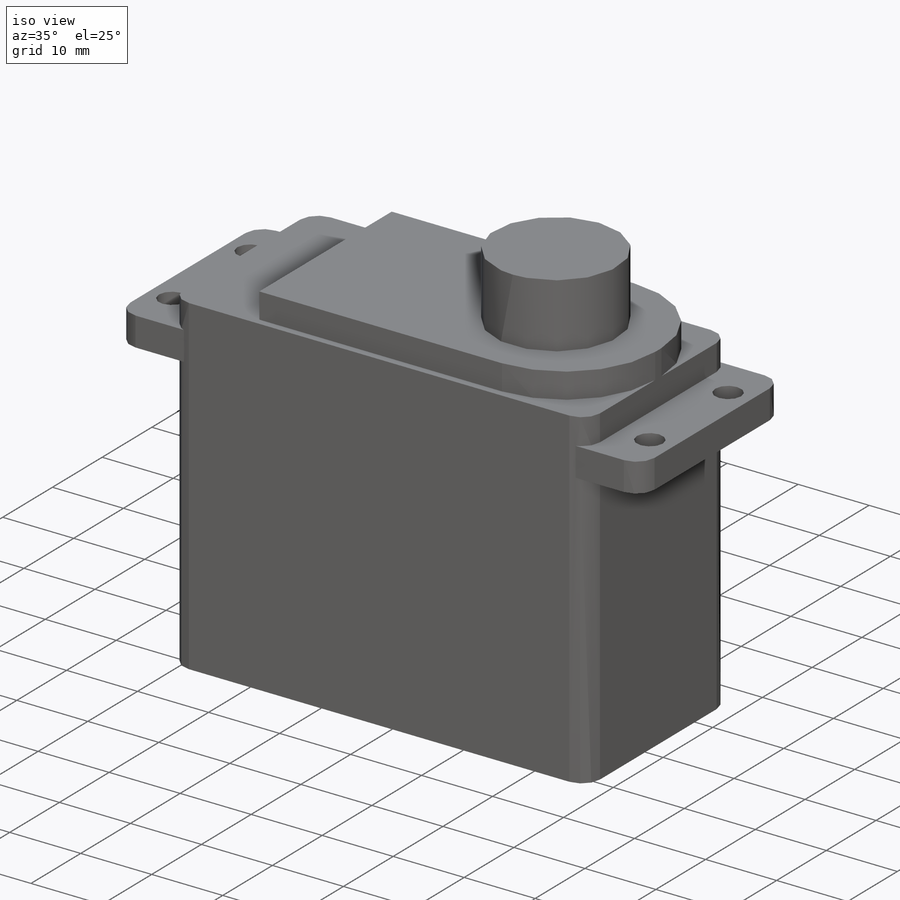
[diagram: iso view]
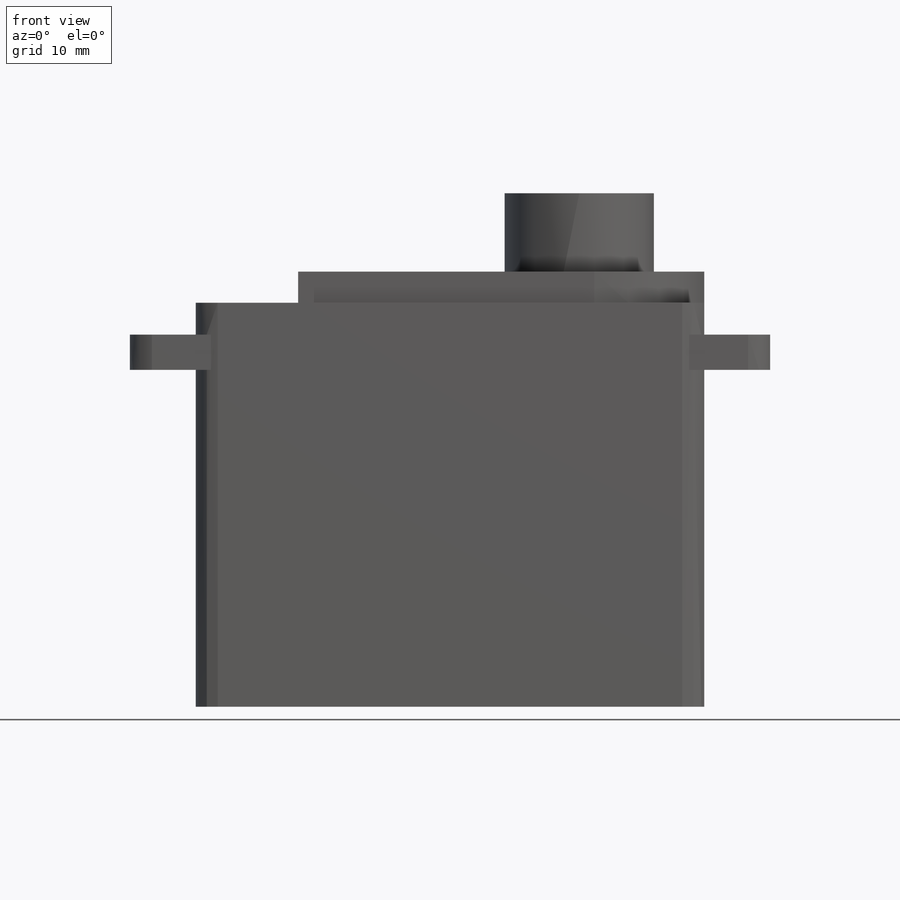
[diagram: front view]
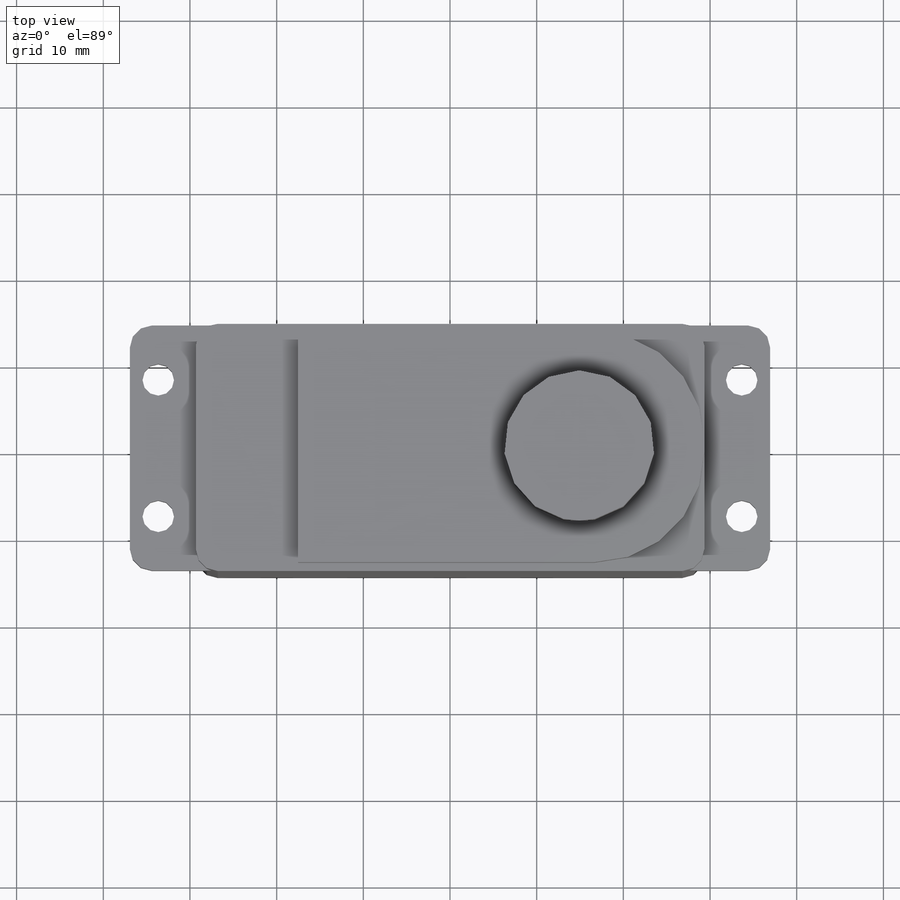
[diagram: top view]
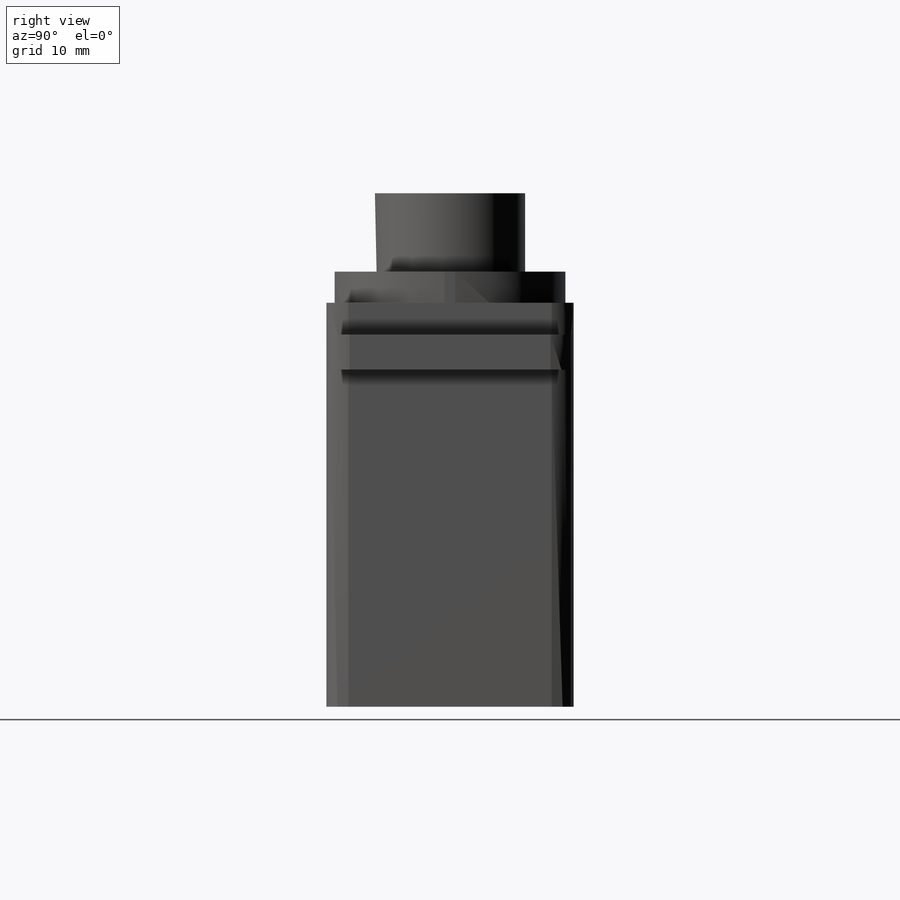
[diagram: right view]
SOLIDWORKS PART (.sldprt)
format: sldprt  version: not decoded by parser v0  size: 284,160 bytes
history: native  units: mm
features: sketch x5, extrude x4, fillet x3, material x1, cut_extrude x1 (+12 scaffold rows collapsed)
feature tree (26):
  scaffold x12  (default folders/planes/origin — collapsed)
  material  "Material <not specified>"
  sketch  "Sketch1"  dims[c1.D1=~36.614874mm c1.D2=~62.287372mm c2.D1=28.5242mm c2.D2=58.674mm]
  extrude  "Boss-Extrude1"  Depth=46.609mm
  sketch  "Sketch2"  dims[c1.D1=~10.731813mm c1.D2=~32.639096mm c2.D1=13.3096mm c2.D2=11.811mm c2.D3=~20.007028mm]
  extrude  "Boss-Extrude2"  Depth=3.5814mm
  fillet  "Fillet1"  Radius=12.7mm
  fillet  "Fillet2"  Radius=2.54mm
  sketch  "Sketch3"  dims[c1.D1=~25.355383mm c1.D2=~71.702664mm c2.D1=0.127mm c2.D2=73.8632mm c2.D3=~39.364258mm]
  extrude  "Boss-Extrude3"  Depth=4.064mm
  fillet  "Fillet3"  Radius=2.54mm
  sketch  "Sketch4"  dims[c1.D3=3.6576mm c1.D4=3.6576mm c1.D5=3.6576mm c1.D6=3.6576mm c1.D1=~21.915944mm c1.D2=~68.004957mm c2.D1=15.748mm c2.D2=67.31mm]
  cut_extrude  "Cut-Extrude1"  [1 undecoded]
  sketch  "Sketch5"  dims[c1.D2=17.3228mm c1.D1=14.4272mm c2.D2=~47.572463mm]
  extrude  "Boss-Extrude4"  Depth=12.6238mm
decode coverage: 12 of 13 modeling features carry decoded parameters
note: ~ marks probable driven/reference dimensions
note: 1 parameter value undecoded
note: suppression state not decoded; provenance and decode notes live in map.json
